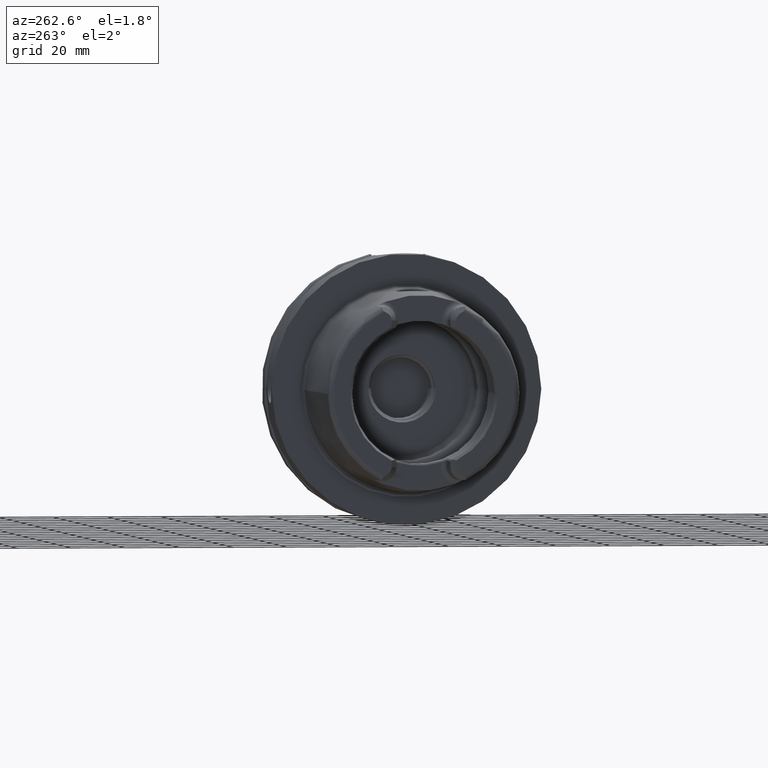
[diagram: clean part render]
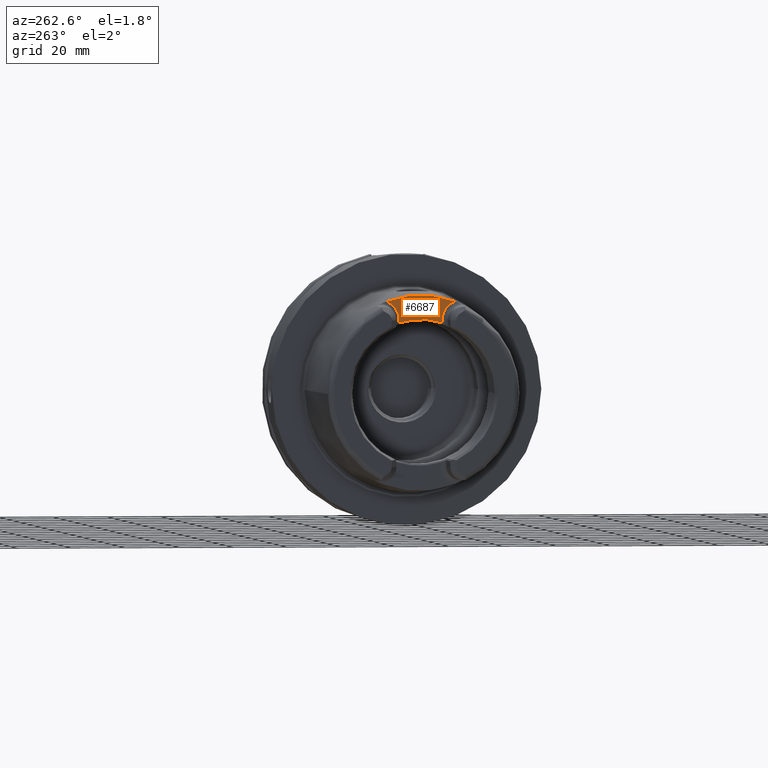
[diagram: same view with one face highlighted and labeled with its STEP entity id]
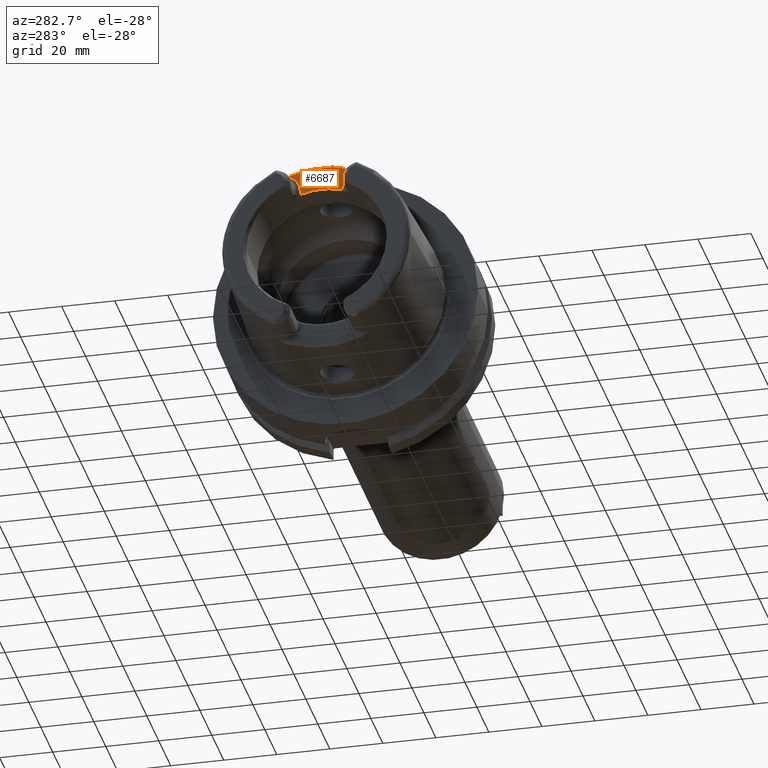
[diagram: same view with one face highlighted and labeled with its STEP entity id]
A machine part, auxiliary view. The second image highlights one B-rep face of the part: STEP entity #6687.
A second angle (auxiliary view) of the same face is appended — the face is thin or edge-on in the first view.
In plain terms, the highlighted planar face has unit normal (-1, 0, 0).
Its self-contained STEP definition (entity closure, byte-faithful):
#9=CARTESIAN_POINT('',(-4.E1,0.E0,0.E0));
#10=DIRECTION('',(1.E0,0.E0,0.E0));
#11=DIRECTION('',(0.E0,3.574556786365E-1,9.339301032789E-1));
#12=AXIS2_PLACEMENT_3D('',#9,#10,#11);
#2702=DIRECTION('',(0.E0,5.174062213620E-12,1.E0));
#2703=VECTOR('',#2702,1.199558594508E0);
#2704=CARTESIAN_POINT('',(-4.E1,8.009999999994E0,2.576044140549E1));
#2705=LINE('',#2704,#2703);
#2706=CARTESIAN_POINT('',(-4.E1,1.501E1,2.696E1));
#2707=DIRECTION('',(-1.E0,0.E0,0.E0));
#2708=DIRECTION('',(0.E0,-1.E0,0.E0));
#2709=AXIS2_PLACEMENT_3D('',#2706,#2707,#2708);
#2711=CARTESIAN_POINT('',(-4.E1,-1.501E1,2.696E1));
#2712=DIRECTION('',(-1.E0,0.E0,0.E0));
#2713=DIRECTION('',(0.E0,3.057634963159E-1,9.521074962002E-1));
#2714=AXIS2_PLACEMENT_3D('',#2711,#2712,#2713);
#2716=DIRECTION('',(0.E0,6.866664706538E-12,-1.E0));
#2717=VECTOR('',#2716,1.199558594503E0);
#2718=CARTESIAN_POINT('',(-4.E1,-8.010000000001E0,2.695999999999E1));
#2719=LINE('',#2718,#2717);
#2720=CARTESIAN_POINT('',(-4.E1,8.009999999994E0,2.576044140549E1));
#2721=CARTESIAN_POINT('',(-4.E1,7.269616392493E0,2.599521452766E1));
#2722=CARTESIAN_POINT('',(-4.E1,5.774680607733E0,2.639793295020E1));
#2723=CARTESIAN_POINT('',(-4.E1,3.481759859025E0,2.680464578135E1));
#2724=CARTESIAN_POINT('',(-4.E1,1.163574268407E0,2.700848033442E1));
#2725=CARTESIAN_POINT('',(-4.E1,-1.163574229637E0,2.700848033529E1));
#2726=CARTESIAN_POINT('',(-4.E1,-3.481759771637E0,2.680464579107E1));
#2727=CARTESIAN_POINT('',(-4.E1,-5.774680487919E0,2.639793297771E1));
#2728=CARTESIAN_POINT('',(-4.E1,-7.269616343063E0,2.599521454333E1));
#2729=CARTESIAN_POINT('',(-4.E1,-8.009999999993E0,2.576044140549E1));
#2915=CARTESIAN_POINT('',(-4.E1,8.01E0,2.696E1));
#2917=VERTEX_POINT('',#2915);
#2919=CARTESIAN_POINT('',(-4.E1,-8.01E0,2.696E1));
#2921=VERTEX_POINT('',#2919);
#2923=CARTESIAN_POINT('',(-4.E1,1.286965552579E1,3.362475247340E1));
#2924=VERTEX_POINT('',#2923);
#2929=CARTESIAN_POINT('',(-4.E1,-1.286965552579E1,3.362475247340E1));
#2930=VERTEX_POINT('',#2929);
#2971=CARTESIAN_POINT('',(-4.E1,8.009999999994E0,2.576044140549E1));
#2972=VERTEX_POINT('',#2971);
#2973=CARTESIAN_POINT('',(-4.E1,-8.009999999993E0,2.576044140549E1));
#2974=VERTEX_POINT('',#2973);
#6672=CARTESIAN_POINT('',(-4.E1,0.E0,0.E0));
#6673=DIRECTION('',(-1.E0,0.E0,0.E0));
#6674=DIRECTION('',(0.E0,0.E0,1.E0));
#6675=AXIS2_PLACEMENT_3D('',#6672,#6673,#6674);
#6676=PLANE('',#6675);
#6677=ORIENTED_EDGE('',*,*,#3579,.T.);
#6678=ORIENTED_EDGE('',*,*,#3597,.T.);
#6679=ORIENTED_EDGE('',*,*,#3364,.T.);
#6681=ORIENTED_EDGE('',*,*,#6680,.T.);
#6683=ORIENTED_EDGE('',*,*,#6682,.T.);
#6684=ORIENTED_EDGE('',*,*,#6663,.F.);
#6685=EDGE_LOOP('',(#6677,#6678,#6679,#6681,#6683,#6684));
#6686=FACE_OUTER_BOUND('',#6685,.F.);
#6687=ADVANCED_FACE('',(#6686),#6676,.T.);
#13=CIRCLE('',#12,3.60035E1);
#2710=CIRCLE('',#2709,7.E0);
#2715=CIRCLE('',#2714,7.E0);
#2730=B_SPLINE_CURVE_WITH_KNOTS('',3,(#2720,#2721,#2722,#2723,#2724,#2725,#2726,
#2727,#2728,#2729),.UNSPECIFIED.,.F.,.F.,(4,1,1,1,1,1,1,4),(0.E0,
1.428571428571E-1,2.857142857143E-1,4.285714285714E-1,5.714285714286E-1,
7.142857142857E-1,8.571428571429E-1,1.E0),.UNSPECIFIED.);
#3364=EDGE_CURVE('',#2924,#2930,#13,.T.);
#3579=EDGE_CURVE('',#2972,#2917,#2705,.T.);
#3597=EDGE_CURVE('',#2917,#2924,#2710,.T.);
#6663=EDGE_CURVE('',#2972,#2974,#2730,.T.);
#6680=EDGE_CURVE('',#2930,#2921,#2715,.T.);
#6682=EDGE_CURVE('',#2921,#2974,#2719,.T.);